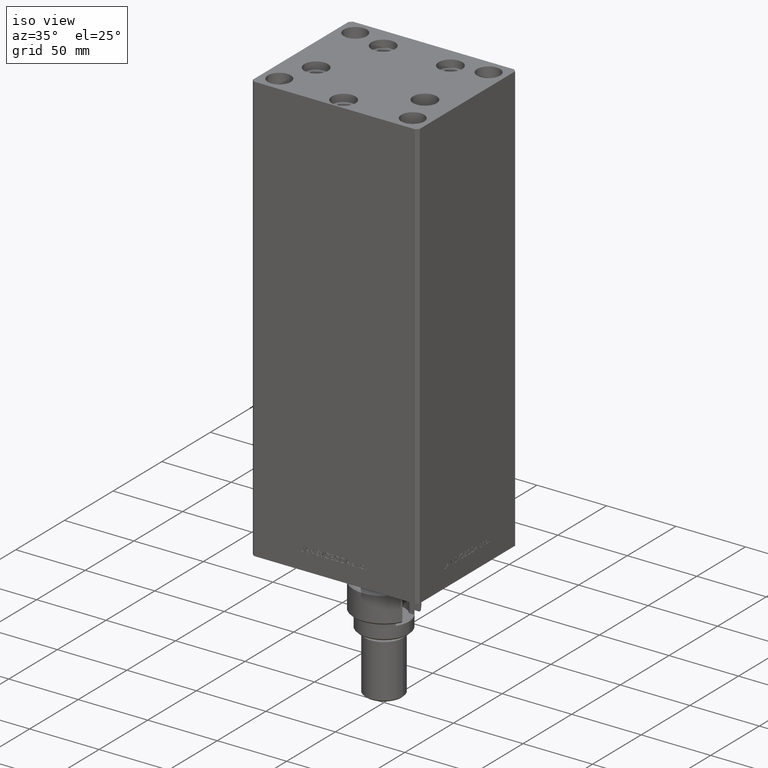
[diagram: clean part render]
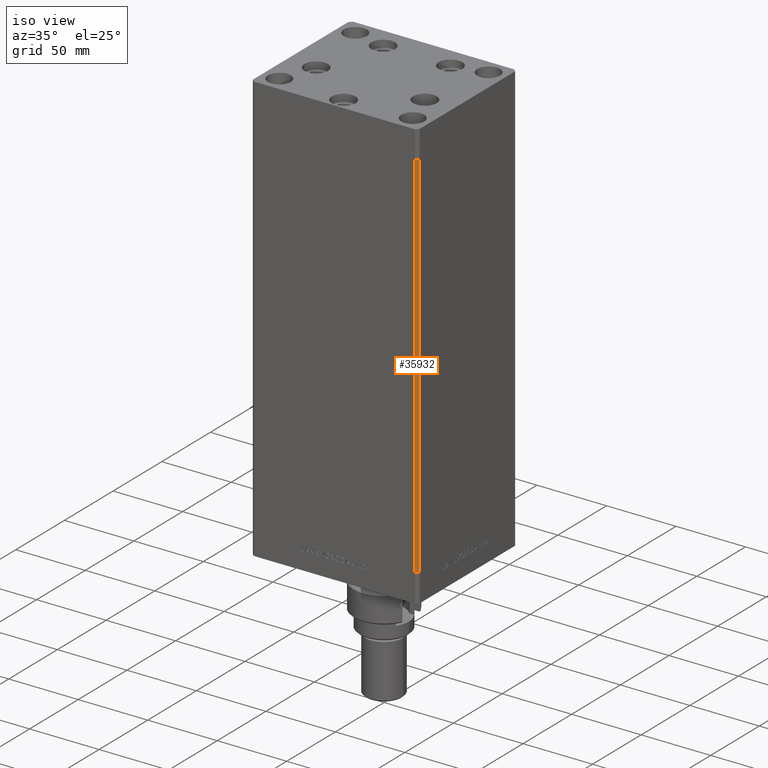
[diagram: same view with one face highlighted and labeled with its STEP entity id]
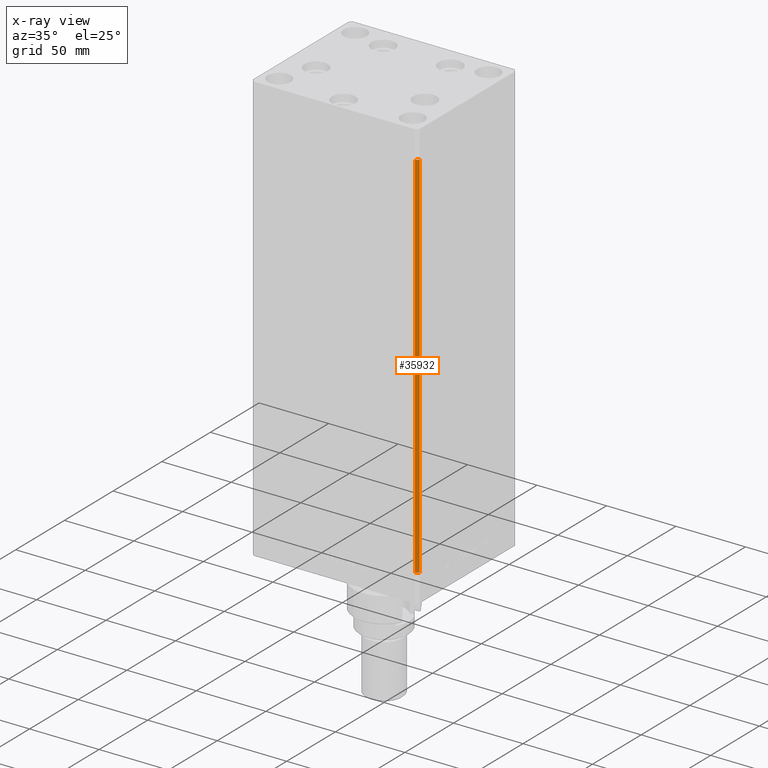
[diagram: x-ray of the same camera — body ghosted, the highlighted face saturated]
A machine part, iso view. The second image highlights one B-rep face of the part: STEP entity #35932.
The next image is the same camera in x-ray: the body ghosted, the highlighted face saturated — about 0% of this face is hidden behind the body in this view.
In plain terms, the highlighted planar face has unit normal (0.7071, -0.7071, 0).
Its self-contained STEP definition (entity closure, byte-faithful):
#844 = VERTEX_POINT ( 'NONE', #7793 ) ;
#2338 = CARTESIAN_POINT ( 'NONE',  ( 57.99999999999997868, -51.00000000000000711, 268.5000000000000000 ) ) ;
#2875 = LINE ( 'NONE', #50182, #38945 ) ;
#4075 = EDGE_CURVE ( 'NONE', #844, #17753, #16290, .T. ) ;
#4595 = DIRECTION ( 'NONE',  ( -0.7071067811865474617, -0.7071067811865474617, 0.000000000000000000 ) ) ;
#5419 = EDGE_CURVE ( 'NONE', #844, #44251, #10490, .T. ) ;
#5763 = LINE ( 'NONE', #32461, #14106 ) ;
#6103 = DIRECTION ( 'NONE',  ( 0.7071067811865474617, 0.7071067811865474617, 0.000000000000000000 ) ) ;
#7793 = CARTESIAN_POINT ( 'NONE',  ( 59.99999999999998579, -49.00000000000000000, 268.5000000000000000 ) ) ;
#9909 = DIRECTION ( 'NONE',  ( 0.7071067811865475727, -0.7071067811865475727, 0.000000000000000000 ) ) ;
#10071 = DIRECTION ( 'NONE',  ( -0.7071067811865474617, -0.7071067811865474617, 0.000000000000000000 ) ) ;
#10360 = EDGE_CURVE ( 'NONE', #17753, #46027, #2875, .T. ) ;
#10490 = LINE ( 'NONE', #46100, #19006 ) ;
#10753 = DIRECTION ( 'NONE',  ( -0.000000000000000000, -0.000000000000000000, -1.000000000000000000 ) ) ;
#11213 = AXIS2_PLACEMENT_3D ( 'NONE', #44747, #9909, #6103 ) ;
#11378 = ORIENTED_EDGE ( 'NONE', *, *, #5419, .F. ) ;
#13719 = FACE_OUTER_BOUND ( 'NONE', #18796, .T. ) ;
#14106 = VECTOR ( 'NONE', #10071, 1000.000000000000114 ) ;
#16290 = LINE ( 'NONE', #27491, #39879 ) ;
#17753 = VERTEX_POINT ( 'NONE', #2338 ) ;
#18796 = EDGE_LOOP ( 'NONE', ( #27995, #11378, #47409, #22676 ) ) ;
#19006 = VECTOR ( 'NONE', #30072, 1000.000000000000000 ) ;
#22676 = ORIENTED_EDGE ( 'NONE', *, *, #10360, .T. ) ;
#24933 = EDGE_CURVE ( 'NONE', #44251, #46027, #5763, .T. ) ;
#27491 = CARTESIAN_POINT ( 'NONE',  ( 59.99999999999998579, -49.00000000000000000, 268.5000000000000000 ) ) ;
#27995 = ORIENTED_EDGE ( 'NONE', *, *, #24933, .F. ) ;
#29234 = PLANE ( 'NONE',  #11213 ) ;
#30072 = DIRECTION ( 'NONE',  ( -0.000000000000000000, -0.000000000000000000, -1.000000000000000000 ) ) ;
#32337 = CARTESIAN_POINT ( 'NONE',  ( 57.99999999999997868, -51.00000000000000711, 0.000000000000000000 ) ) ;
#32461 = CARTESIAN_POINT ( 'NONE',  ( 59.99999999999998579, -49.00000000000000000, 0.000000000000000000 ) ) ;
#35932 = ADVANCED_FACE ( 'NONE', ( #13719 ), #29234, .T. ) ;
#38945 = VECTOR ( 'NONE', #10753, 1000.000000000000000 ) ;
#39879 = VECTOR ( 'NONE', #4595, 1000.000000000000114 ) ;
#44251 = VERTEX_POINT ( 'NONE', #46097 ) ;
#44747 = CARTESIAN_POINT ( 'NONE',  ( 59.99999999999998579, -49.00000000000000000, 268.5000000000000000 ) ) ;
#46027 = VERTEX_POINT ( 'NONE', #32337 ) ;
#46097 = CARTESIAN_POINT ( 'NONE',  ( 59.99999999999998579, -49.00000000000000000, 0.000000000000000000 ) ) ;
#46100 = CARTESIAN_POINT ( 'NONE',  ( 59.99999999999998579, -49.00000000000000000, 268.5000000000000000 ) ) ;
#47409 = ORIENTED_EDGE ( 'NONE', *, *, #4075, .T. ) ;
#50182 = CARTESIAN_POINT ( 'NONE',  ( 57.99999999999997868, -51.00000000000000711, 268.5000000000000000 ) ) ;